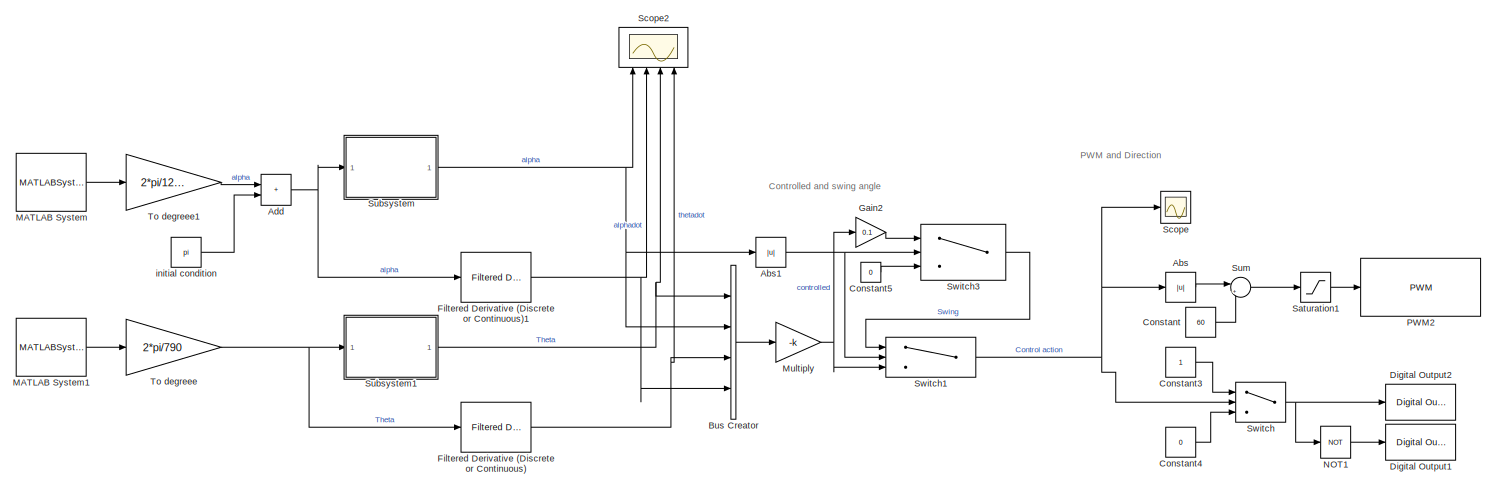
[diagram: root canvas - part 1/2, most of the canvas]
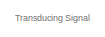
[diagram: root canvas - part 2/2, top left region]
MODEL slx_40dddd6faba2
KIND model
CONFIG AbsTol = auto
CONFIG EnableMultiTasking = on
CONFIG FixedStep = auto
CONFIG MaxStep = auto
CONFIG MinStep = auto
CONFIG RelTol = 1e-3
CONFIG SampleTimeConstraint = Unconstrained
CONFIG SolverName = FixedStepAuto
CONFIG StartTime = 0.0
CONFIG StopTime = 10.0
BLOCK [Abs] Abs
  OutDataTypeStr = double
  SaturateOnIntegerOverflow = off
BLOCK [Abs] Abs1
  OutDataTypeStr = double
  SaturateOnIntegerOverflow = off
BLOCK [Sum] Add
  AccumDataTypeStr = double
  IconShape = rectangular
  Ports = [2, 1]
BLOCK [BusCreator] Bus Creator
  DisplayOption = bar
  InheritFromInputs = on
  Inputs = 4
  Ports = [4, 1]
BLOCK [Constant] Constant
  Value = 60
BLOCK [Constant] Constant3
BLOCK [Constant] Constant4
  Value = 0
BLOCK [Constant] Constant5
  Value = 0
BLOCK [Reference] Digital Output1  REF=arduinolib/Digital Output
  Ports = [1]
  SourceBlock = arduinolib/Digital Output
  SourceProductBaseCode = ARDUINO
  SourceType = Arduino Digital Output
BLOCK [Reference] Digital Output2  REF=arduinolib/Digital Output
  Ports = [1]
  SourceBlock = arduinolib/Digital Output
  SourceProductBaseCode = ARDUINO
  SourceType = Arduino Digital Output
BLOCK [Reference] Filtered Derivative (Discrete or Continuous)  REF=eeGeneralControl/Filtered Derivative
(Discrete or Continuous)
  NameLocation = top
  Ports = [1, 1]
  SourceBlock = eeGeneralControl/Filtered Derivative\n(Discrete or Continuous)
  SourceProductBaseCode = PS
  SourceType = Filtered Derivative (Discrete or Continuous)
BLOCK [Reference] Filtered Derivative (Discrete or Continuous)1  REF=eeGeneralControl/Filtered Derivative
(Discrete or Continuous)
  NameLocation = top
  Ports = [1, 1]
  SourceBlock = eeGeneralControl/Filtered Derivative\n(Discrete or Continuous)
  SourceProductBaseCode = PS
  SourceType = Filtered Derivative (Discrete or Continuous)
BLOCK [Gain] Gain2
  Gain = 0.1
  OutDataTypeStr = double
BLOCK [MATLABSystem] MATLAB System
  Encoder = 1
  MaskDisplay = disp('Encoder');\nport_label('output',1,'y');
  MaskType = Encoder_arduino_3
  PinA = 3
  PinB = 5
  Ports = [0, 1]
  SampleTime = 0.001
  System = Encoder_arduino_3
BLOCK [MATLABSystem] MATLAB System1
  Encoder = 0
  MaskDisplay = disp('Encoder');\nport_label('output',1,'y');
  MaskType = Encoder_arduino_2
  PinA = 2
  PinB = 4
  Ports = [0, 1]
  SampleTime = 0.001
  System = Encoder_arduino_2
BLOCK [Gain] Multiply
  Gain = -k
  Multiplication = Matrix(K*u) (u vector)
  OutDataTypeStr = double
BLOCK [Logic] NOT1
  AllPortsSameDT = off
  IconShape = distinctive
  Operator = NOT
  OutDataTypeStr = boolean
  Ports = [1, 1]
BLOCK [Reference] PWM2  REF=arduinolib/PWM
  Ports = [1]
  SourceBlock = arduinolib/PWM
  SourceProductBaseCode = ARDUINO
  SourceType = Arduino PWM
BLOCK [Saturate] Saturation1
  LowerLimit = 0
  UpperLimit = 255
BLOCK [Scope] Scope
  Floating = off
  NumInputPorts = 1
  Ports = [1]
  ScopeSpecificationString = Simulink.scopes.TimeScopeBlockCfg('CurrentConfiguration', extmgr.ConfigurationSet(extmgr.Configuration('Core','General UI',true),extmgr.Configuration('Core','Source UI',true),extmgr.Configuration('Sources','WiredSimulink',true,'DataLoggingVariableName','ScopeData1'),extmgr.Configuration('Visuals','Time Domain',true,'SerializedDisplays',{struct('MinYLimReal','37.02249','MaxYLimReal','57.02249','YLa...<+1406ch>
BLOCK [Scope] Scope2
  Floating = off
  NameLocation = right
  NumInputPorts = 4
  Ports = [4]
  ScopeSpecificationString = Simulink.scopes.TimeScopeBlockCfg('CurrentConfiguration', extmgr.ConfigurationSet(extmgr.Configuration('Core','General UI',true),extmgr.Configuration('Core','Source UI',true),extmgr.Configuration('Sources','WiredSimulink',true,'DataLoggingVariableName','ScopeData1'),extmgr.Configuration('Visuals','Time Domain',true,'SerializedDisplays',{struct('MinYLimReal','-3.92699','MaxYLimReal','3.92697','YLab...<+3763ch>
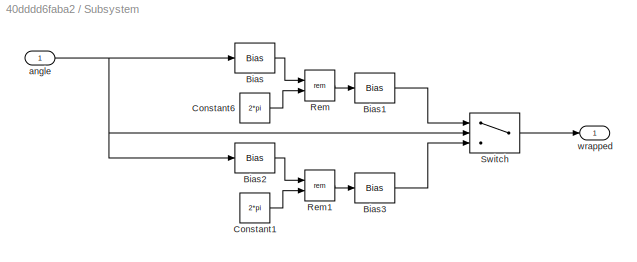
BLOCK [SubSystem] Subsystem
  Ports = [1, 1]
  RequestExecContextInheritance = off
BLOCK [Bias] Subsystem/Bias
  Bias = pi
  SaturateOnIntegerOverflow = off
BLOCK [Bias] Subsystem/Bias1
  Bias = -pi
  SaturateOnIntegerOverflow = off
BLOCK [Bias] Subsystem/Bias2
  Bias = -pi
  SaturateOnIntegerOverflow = off
BLOCK [Bias] Subsystem/Bias3
  Bias = pi
  SaturateOnIntegerOverflow = off
BLOCK [Constant] Subsystem/Constant1
  Value = 2*pi
BLOCK [Constant] Subsystem/Constant6
  Value = 2*pi
BLOCK [Math] Subsystem/Rem
  Operator = rem
  Ports = [2, 1]
  SignedPower = on
BLOCK [Math] Subsystem/Rem1
  Operator = rem
  Ports = [2, 1]
  SignedPower = on
BLOCK [Switch] Subsystem/Switch
  Criteria = u2 > Threshold
  InputSameDT = off
  OutDataTypeStr = double
  SaturateOnIntegerOverflow = off
BLOCK [Inport] Subsystem/angle
BLOCK [Outport] Subsystem/wrapped
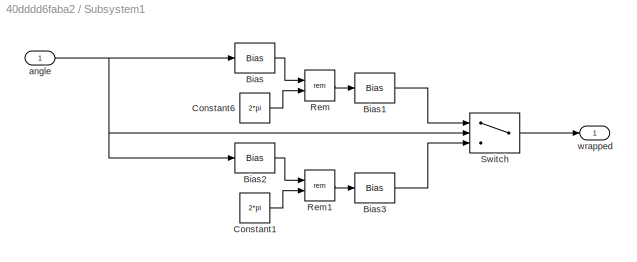
BLOCK [SubSystem] Subsystem1
  Ports = [1, 1]
  RequestExecContextInheritance = off
BLOCK [Bias] Subsystem1/Bias
  Bias = pi
  SaturateOnIntegerOverflow = off
BLOCK [Bias] Subsystem1/Bias1
  Bias = -pi
  SaturateOnIntegerOverflow = off
BLOCK [Bias] Subsystem1/Bias2
  Bias = -pi
  SaturateOnIntegerOverflow = off
BLOCK [Bias] Subsystem1/Bias3
  Bias = pi
  SaturateOnIntegerOverflow = off
BLOCK [Constant] Subsystem1/Constant1
  Value = 2*pi
BLOCK [Constant] Subsystem1/Constant6
  Value = 2*pi
BLOCK [Math] Subsystem1/Rem
  Operator = rem
  Ports = [2, 1]
  SignedPower = on
BLOCK [Math] Subsystem1/Rem1
  Operator = rem
  Ports = [2, 1]
  SignedPower = on
BLOCK [Switch] Subsystem1/Switch
  Criteria = u2 > Threshold
  InputSameDT = off
  OutDataTypeStr = double
  SaturateOnIntegerOverflow = off
BLOCK [Inport] Subsystem1/angle
BLOCK [Outport] Subsystem1/wrapped
BLOCK [Sum] Sum
  Inputs = |++
  Ports = [2, 1]
BLOCK [Switch] Switch
  Criteria = u2 > Threshold
  InputSameDT = off
  OutDataTypeStr = double
  SaturateOnIntegerOverflow = off
BLOCK [Switch] Switch1
  Criteria = u2 > Threshold
  InputSameDT = off
  OutDataTypeStr = double
  SaturateOnIntegerOverflow = off
  Threshold = pi/7
BLOCK [Switch] Switch3
  Criteria = u2 > Threshold
  InputSameDT = off
  OutDataTypeStr = double
  SaturateOnIntegerOverflow = off
  Threshold = pi*(2/3)
BLOCK [Gain] To degreee
  Gain = 2*pi/790
  OutDataTypeStr = double
BLOCK [Gain] To degreee1
  Gain = 2*pi/1200
  OutDataTypeStr = double
BLOCK [Constant] initial condition
  Value = pi
ANNOTATION (root): Controlled and swing angle
ANNOTATION (root): PWM and Direction
ANNOTATION (root): Transducing Signal
NET Abs1:1 -> Switch1:2, Switch3:2
LINE Abs:1 -> Sum:1
NET Add:1 -> Filtered Derivative (Discrete or Continuous)1:1, Subsystem:1
LINE Bus Creator:1 -> Multiply:1
LINE Constant3:1 -> Switch:1
LINE Constant4:1 -> Switch:3
LINE Constant5:1 -> Switch3:3
LINE Constant:1 -> Sum:2
NET Filtered Derivative (Discrete or Continuous)1:1 -> Bus Creator:4, Scope2:2
NET Filtered Derivative (Discrete or Continuous):1 -> Bus Creator:3, Scope2:4
LINE Gain2:1 -> Switch3:1
LINE MATLAB System1:1 -> To degreee:1
LINE MATLAB System:1 -> To degreee1:1
NET Multiply:1 -> Gain2:1, Switch1:3
LINE NOT1:1 -> Digital Output1:1
LINE Saturation1:1 -> PWM2:1
LINE Subsystem/Bias1:1 -> Subsystem/Switch:1
LINE Subsystem/Bias2:1 -> Subsystem/Rem1:1
LINE Subsystem/Bias3:1 -> Subsystem/Switch:3
LINE Subsystem/Bias:1 -> Subsystem/Rem:1
LINE Subsystem/Constant1:1 -> Subsystem/Rem1:2
LINE Subsystem/Constant6:1 -> Subsystem/Rem:2
LINE Subsystem/Rem1:1 -> Subsystem/Bias3:1
LINE Subsystem/Rem:1 -> Subsystem/Bias1:1
LINE Subsystem/Switch:1 -> Subsystem/wrapped:1
NET Subsystem/angle:1 -> Subsystem/Bias2:1, Subsystem/Bias:1, Subsystem/Switch:2
LINE Subsystem1/Bias1:1 -> Subsystem1/Switch:1
LINE Subsystem1/Bias2:1 -> Subsystem1/Rem1:1
LINE Subsystem1/Bias3:1 -> Subsystem1/Switch:3
LINE Subsystem1/Bias:1 -> Subsystem1/Rem:1
LINE Subsystem1/Constant1:1 -> Subsystem1/Rem1:2
LINE Subsystem1/Constant6:1 -> Subsystem1/Rem:2
LINE Subsystem1/Rem1:1 -> Subsystem1/Bias3:1
LINE Subsystem1/Rem:1 -> Subsystem1/Bias1:1
LINE Subsystem1/Switch:1 -> Subsystem1/wrapped:1
NET Subsystem1/angle:1 -> Subsystem1/Bias2:1, Subsystem1/Bias:1, Subsystem1/Switch:2
NET Subsystem1:1 -> Bus Creator:1, Scope2:3
NET Subsystem:1 -> Abs1:1, Bus Creator:2, Scope2:1
LINE Sum:1 -> Saturation1:1
NET Switch1:1 -> Abs:1, Scope:1, Switch:2
LINE Switch3:1 -> Switch1:1
NET Switch:1 -> Digital Output2:1, NOT1:1
LINE To degreee1:1 -> Add:1
NET To degreee:1 -> Filtered Derivative (Discrete or Continuous):1, Subsystem1:1
LINE initial condition:1 -> Add:2
note: NET lines group one-source signal fan-out (src -> all destinations, sorted); 1:1 wires keep LINE
